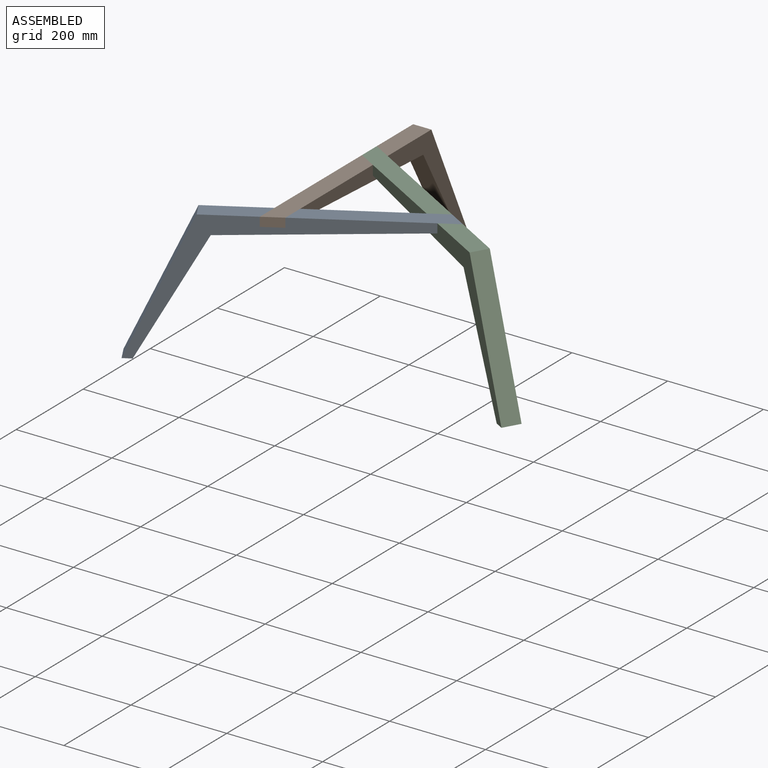
[diagram: assembled view]
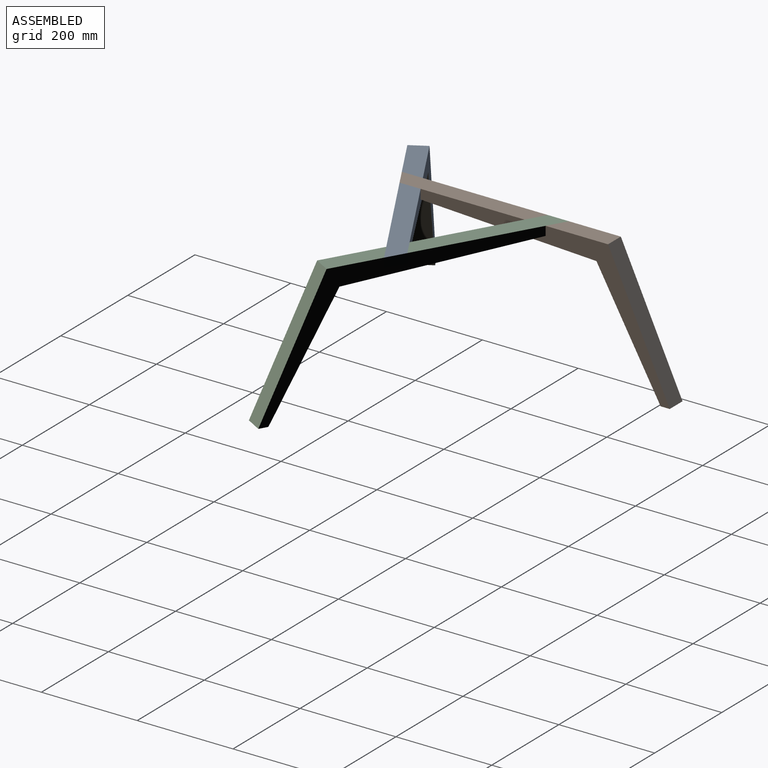
[diagram: assembled view, second angle]
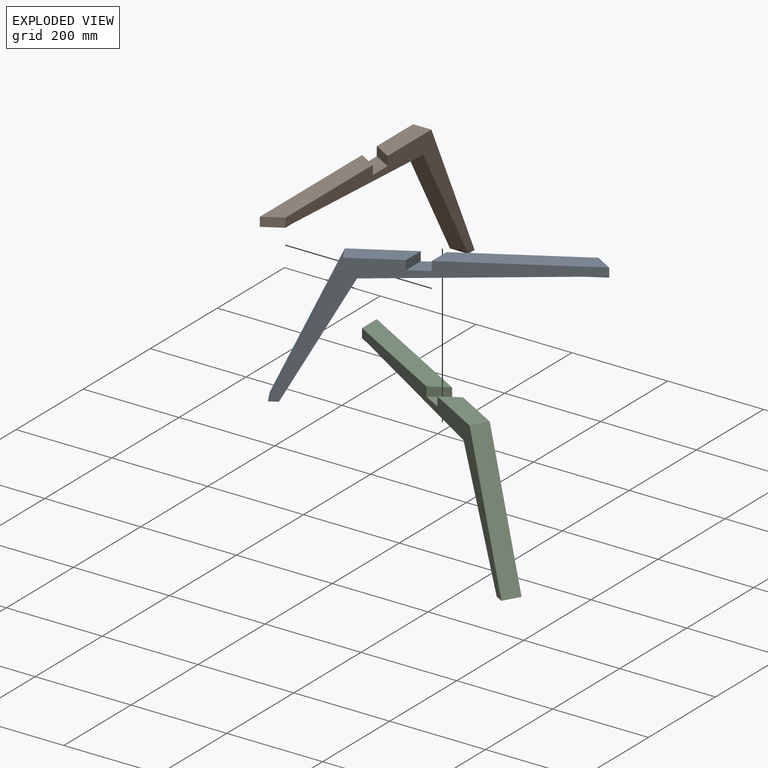
[diagram: exploded view]
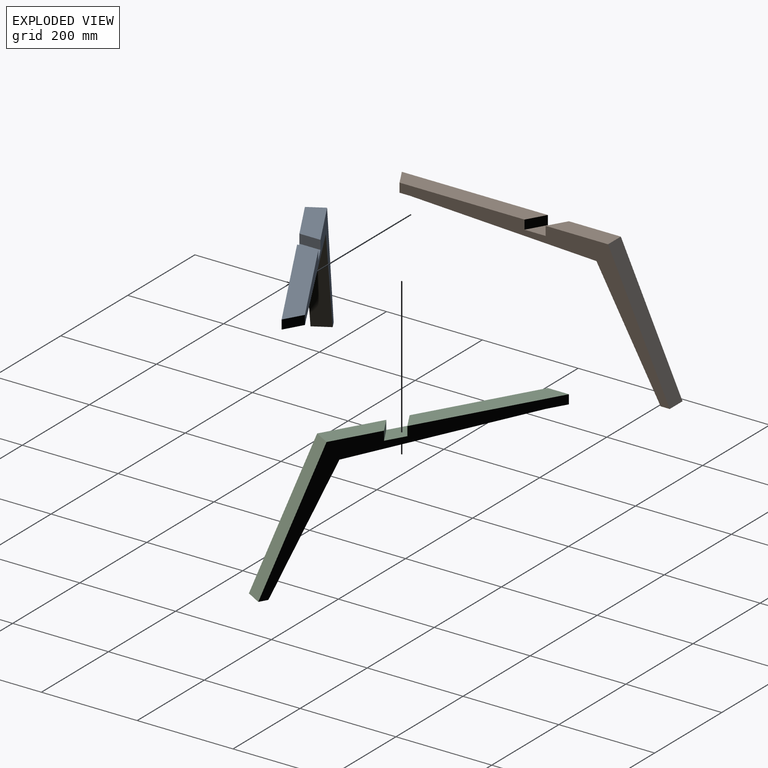
[diagram: exploded view, second angle]
ASSEMBLY  parts=3 mates=5
PART A: 13 faces, bbox 586x38.1x276.2 mm
  f0: plane 304.8x38.1mm, normal (0,0,1), area 10774.8mm2, adj f2,f3,f10,f12
  f1: plane 43.99x38.1mm, normal (0,0,-1), area 1257.1mm2, adj f2,f3,f5,f12
  f2: plane 564.02x276.24mm, normal (0,1,0), area 19231.9mm2, adj f0,f1,f4,f5,f6,f7,f8,f9
  f3: plane 586.01x276.24mm, normal (0,-1,0), area 19650.9mm2, adj f0,f1,f4,f5,f6,f7,f8,f9
  f4: plane 130.4x38.1mm, normal (0,0,1), area 4549.3mm2, adj f2,f3,f6,f9
  f5: plane 388.93x38.1mm, normal (0.05,0,-1), area 14836.1mm2, adj f1,f2,f3,f8
  f6: plane 276.24x128.81mm, normal (-0.91,0,0.42), area 11612.9mm2, adj f2,f3,f4,f7
  f7: plane 38.1x19.05mm, normal (0,0,-1), area 725.8mm2, adj f2,f3,f6,f8
  f8: plane 238.14x134.04mm, normal (0.87,0,-0.49), area 10411.7mm2, adj f2,f3,f5,f7
  f9: plane 38.1x22mm, normal (0.87,-0.5,0), area 838.1mm2, adj f2,f3,f4,f11
  f10: plane 38.1x22mm, normal (-0.87,0.5,0), area 838.1mm2, adj f0,f2,f3,f11
  f11: plane 65.99x38.1mm, normal (0,0,1), area 1676.2mm2, adj f2,f3,f9,f10
  f12: plane 38.1x22mm, normal (0.87,0.5,0), area 838.1mm2, adj f0,f1,f2,f3
PART B: same geometry as A
PART C: same geometry as A
PLACE A rot(axis=(0,0,1),30deg) t=(-1504.7,-563.25,290.96)mm
PLACE B rot(axis=(0,0,-1),90deg) t=(-1353.67,-84.85,290.96)mm
PLACE C rot(axis=(0,0,1),150deg) t=(-1014.88,-454.85,290.96)mm
MATE planar B.f3 <-> A.f9  axis (-1,0,0) through (-1391.77,-237.25,271.91)mm
MATE planar C.f1 <-> B.f11  axis (0,0,-1) through (-1376.96,-221.36,271.91)mm
MATE planar B.f12 <-> A.f3  axis (0.5,-0.87,0) through (-1372.72,-531.05,281.44)mm
MATE planar C.f12 <-> B.f3  axis (-1,0,0) through (-1391.77,-215.25,281.44)mm
MATE planar C.f3 <-> A.f12  axis (0.5,0.87,0) through (-1087.91,-368.69,228.6)mm
